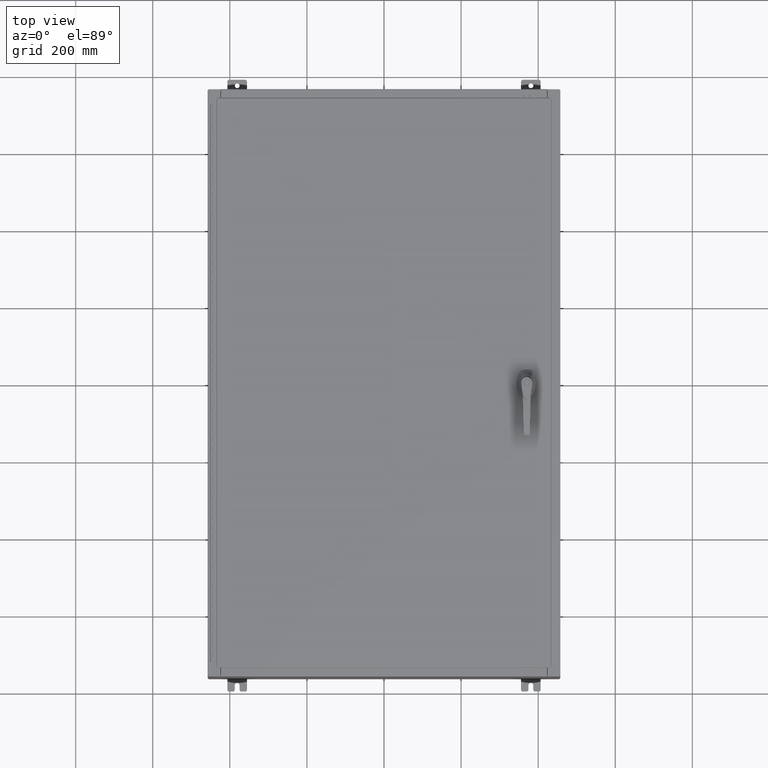
[diagram: clean part render]
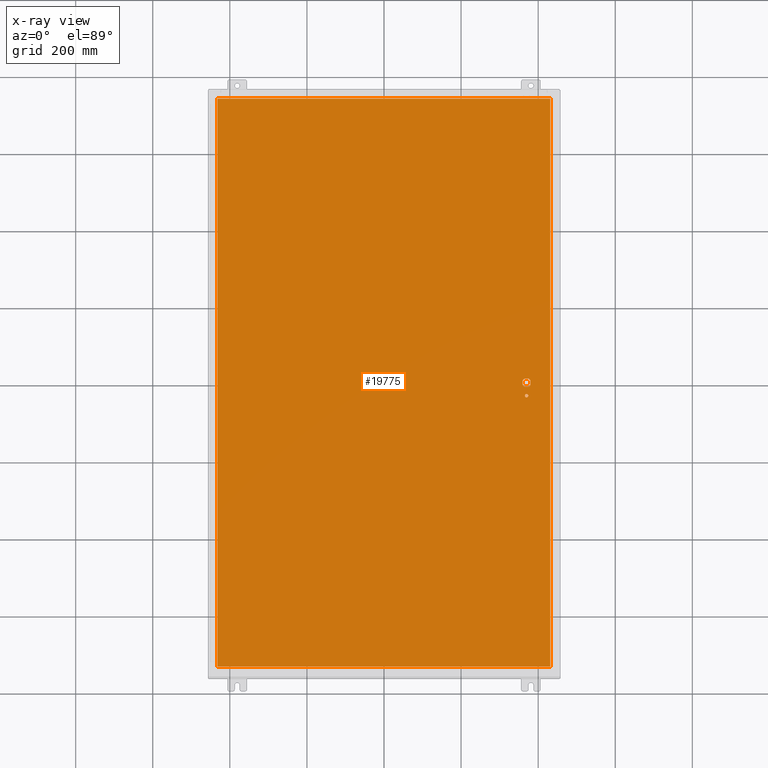
[diagram: x-ray — body ghosted, one internal face saturated and labeled with its STEP entity id]
A machine part, top view, then the same camera in x-ray: the body is ghosted and one INTERNAL B-rep face — a face not visible from any outside direction — is saturated and labeled: STEP entity #19775.
In plain terms, the highlighted planar face has unit normal (0, 0, -1).
Its self-contained STEP definition (entity closure, byte-faithful):
#2202 = PLANE ( 'NONE',  #128943 ) ;
#3647 = CARTESIAN_POINT ( 'NONE',  ( -16.99029999999999800, -29.00630000000000300, -0.07469999999999804600 ) ) ;
#4370 = ORIENTED_EDGE ( 'NONE', *, *, #90987, .T. ) ;
#6608 = CARTESIAN_POINT ( 'NONE',  ( 14.17500000000007700, -0.2002273707563079800, -0.07470000000000003000 ) ) ;
#6687 = DIRECTION ( 'NONE',  ( -1.000000000000000000, -1.776356839400246700E-015, 0.0000000000000000000 ) ) ;
#6693 = VERTEX_POINT ( 'NONE', #45824 ) ;
#7914 = LINE ( 'NONE', #70102, #118554 ) ;
#9940 = CARTESIAN_POINT ( 'NONE',  ( -16.99029999999999400, 29.00630000000000000, -0.07470000000000000300 ) ) ;
#11151 = DIRECTION ( 'NONE',  ( -0.0000000000000000000, -0.0000000000000000000, 1.000000000000000000 ) ) ;
#11737 = AXIS2_PLACEMENT_3D ( 'NONE', #102344, #36129, #113454 ) ;
#13310 = DIRECTION ( 'NONE',  ( 0.0000000000000000000, 0.0000000000000000000, -1.000000000000000000 ) ) ;
#13383 = FACE_BOUND ( 'NONE', #76223, .T. ) ;
#13465 = CARTESIAN_POINT ( 'NONE',  ( 14.77822737075631400, -0.4029999999999252000, -0.07470000000000003000 ) ) ;
#13559 = DIRECTION ( 'NONE',  ( 0.0000000000000000000, -1.000000000000000000, 0.0000000000000000000 ) ) ;
#14057 = CARTESIAN_POINT ( 'NONE',  ( -16.99029999999999800, -29.00630000000000000, -0.07470000000000000300 ) ) ;
#15241 = VERTEX_POINT ( 'NONE', #24203 ) ;
#15578 = CARTESIAN_POINT ( 'NONE',  ( 14.98099999999993100, 8.175868191945444300E-014, -0.07470000000000003000 ) ) ;
#18842 = ORIENTED_EDGE ( 'NONE', *, *, #28434, .T. ) ;
#19775 = ADVANCED_FACE ( 'NONE', ( #13383, #72144, #127573 ), #2202, .T. ) ;
#20954 = DIRECTION ( 'NONE',  ( -1.000000000000000000, 0.0000000000000000000, 0.0000000000000000000 ) ) ;
#21914 = VERTEX_POINT ( 'NONE', #128345 ) ;
#24014 = ORIENTED_EDGE ( 'NONE', *, *, #92097, .T. ) ;
#24203 = CARTESIAN_POINT ( 'NONE',  ( 14.37777262924369400, -0.4029999999999250300, -0.07470000000000003000 ) ) ;
#24465 = EDGE_CURVE ( 'NONE', #21914, #51813, #102449, .T. ) ;
#24717 = AXIS2_PLACEMENT_3D ( 'NONE', #50392, #127844, #61510 ) ;
#26716 = DIRECTION ( 'NONE',  ( 5.457491617345625800E-015, -1.000000000000000000, 0.0000000000000000000 ) ) ;
#28434 = EDGE_CURVE ( 'NONE', #15241, #125183, #32639, .T. ) ;
#29559 = CIRCLE ( 'NONE', #95383, 0.4499999999999168000 ) ;
#32421 = CARTESIAN_POINT ( 'NONE',  ( 14.40650000000000300, -1.338000000000000100, -0.07470000000000003000 ) ) ;
#32639 = LINE ( 'NONE', #106054, #61985 ) ;
#35504 = EDGE_CURVE ( 'NONE', #6693, #118662, #100791, .T. ) ;
#36129 = DIRECTION ( 'NONE',  ( -0.0000000000000000000, -0.0000000000000000000, 1.000000000000000000 ) ) ;
#37553 = DIRECTION ( 'NONE',  ( -1.000000000000000000, -0.0000000000000000000, -0.0000000000000000000 ) ) ;
#37565 = CIRCLE ( 'NONE', #39237, 0.1715000000000011500 ) ;
#37744 = DIRECTION ( 'NONE',  ( -0.0000000000000000000, -0.0000000000000000000, 1.000000000000000000 ) ) ;
#39237 = AXIS2_PLACEMENT_3D ( 'NONE', #53137, #130597, #64236 ) ;
#39891 = EDGE_CURVE ( 'NONE', #40535, #97982, #49019, .T. ) ;
#40535 = VERTEX_POINT ( 'NONE', #49387 ) ;
#41999 = VERTEX_POINT ( 'NONE', #9940 ) ;
#42608 = ORIENTED_EDGE ( 'NONE', *, *, #143449, .F. ) ;
#45753 = CIRCLE ( 'NONE', #11737, 0.4499999999999168000 ) ;
#45824 = CARTESIAN_POINT ( 'NONE',  ( 14.74950000000000500, -1.338000000000000100, -0.07470000000000003000 ) ) ;
#46461 = CARTESIAN_POINT ( 'NONE',  ( -16.99029999999999400, 29.00630000000000000, -0.07469999999999582500 ) ) ;
#48777 = ORIENTED_EDGE ( 'NONE', *, *, #39891, .T. ) ;
#49019 = LINE ( 'NONE', #131694, #100929 ) ;
#49387 = CARTESIAN_POINT ( 'NONE',  ( 14.77822737075631400, 0.4029999999999250300, -0.07470000000000003000 ) ) ;
#49713 = LINE ( 'NONE', #114866, #134564 ) ;
#50136 = ORIENTED_EDGE ( 'NONE', *, *, #35504, .T. ) ;
#50328 = VERTEX_POINT ( 'NONE', #109701 ) ;
#50392 = CARTESIAN_POINT ( 'NONE',  ( 14.57800000000000500, 0.0000000000000000000, -0.07470000000000003000 ) ) ;
#51813 = VERTEX_POINT ( 'NONE', #6608 ) ;
#53137 = CARTESIAN_POINT ( 'NONE',  ( 14.57800000000000500, -1.338000000000000100, -0.07470000000000003000 ) ) ;
#57191 = CARTESIAN_POINT ( 'NONE',  ( 0.0000000000000000000, 0.0000000000000000000, -0.07470000000000000300 ) ) ;
#60305 = EDGE_CURVE ( 'NONE', #41999, #126728, #71059, .T. ) ;
#61510 = DIRECTION ( 'NONE',  ( -1.000000000000000000, -5.329070518200740300E-015, 0.0000000000000000000 ) ) ;
#61985 = VECTOR ( 'NONE', #128295, 39.37007874015748100 ) ;
#64236 = DIRECTION ( 'NONE',  ( -1.000000000000000000, 0.0000000000000000000, 0.0000000000000000000 ) ) ;
#65210 = ORIENTED_EDGE ( 'NONE', *, *, #120143, .T. ) ;
#66015 = VECTOR ( 'NONE', #13559, 39.37007874015748100 ) ;
#68015 = ORIENTED_EDGE ( 'NONE', *, *, #60305, .F. ) ;
#70102 = CARTESIAN_POINT ( 'NONE',  ( 16.99030000000000500, -29.00630000000000000, -0.07470000000000019700 ) ) ;
#70374 = ORIENTED_EDGE ( 'NONE', *, *, #123834, .F. ) ;
#71059 = LINE ( 'NONE', #46461, #100502 ) ;
#72144 = FACE_OUTER_BOUND ( 'NONE', #132875, .T. ) ;
#72836 = DIRECTION ( 'NONE',  ( -0.0000000000000000000, -0.0000000000000000000, 1.000000000000000000 ) ) ;
#73479 = VERTEX_POINT ( 'NONE', #132088 ) ;
#75409 = ORIENTED_EDGE ( 'NONE', *, *, #107031, .T. ) ;
#76223 = EDGE_LOOP ( 'NONE', ( #50136, #4370 ) ) ;
#77349 = CARTESIAN_POINT ( 'NONE',  ( 14.57800000000000500, -1.338000000000000100, -0.07470000000000003000 ) ) ;
#84004 = EDGE_CURVE ( 'NONE', #98459, #73479, #123056, .T. ) ;
#85485 = VECTOR ( 'NONE', #114298, 39.37007874015748100 ) ;
#86839 = ORIENTED_EDGE ( 'NONE', *, *, #24465, .T. ) ;
#88491 = DIRECTION ( 'NONE',  ( -1.000000000000000000, 0.0000000000000000000, 0.0000000000000000000 ) ) ;
#90648 = DIRECTION ( 'NONE',  ( -1.000000000000000000, 0.0000000000000000000, -0.0000000000000000000 ) ) ;
#90987 = EDGE_CURVE ( 'NONE', #118662, #6693, #37565, .T. ) ;
#92097 = EDGE_CURVE ( 'NONE', #98459, #40535, #123877, .T. ) ;
#92291 = EDGE_LOOP ( 'NONE', ( #75409, #101824, #24014, #48777, #65210, #86839, #117678, #18842 ) ) ;
#92384 = DIRECTION ( 'NONE',  ( 0.0000000000000000000, 1.000000000000000000, 0.0000000000000000000 ) ) ;
#93631 = VECTOR ( 'NONE', #26716, 39.37007874015748100 ) ;
#93690 = CARTESIAN_POINT ( 'NONE',  ( 14.37777262924369400, 0.4029999999999252000, -0.07470000000000003000 ) ) ;
#95383 = AXIS2_PLACEMENT_3D ( 'NONE', #139179, #72836, #6687 ) ;
#97982 = VERTEX_POINT ( 'NONE', #93690 ) ;
#98459 = VERTEX_POINT ( 'NONE', #123069 ) ;
#98468 = ORIENTED_EDGE ( 'NONE', *, *, #133334, .F. ) ;
#100502 = VECTOR ( 'NONE', #123861, 39.37007874015748100 ) ;
#100791 = CIRCLE ( 'NONE', #102210, 0.1715000000000011500 ) ;
#100929 = VECTOR ( 'NONE', #20954, 39.37007874015748100 ) ;
#101824 = ORIENTED_EDGE ( 'NONE', *, *, #84004, .F. ) ;
#102210 = AXIS2_PLACEMENT_3D ( 'NONE', #77349, #11151, #88491 ) ;
#102344 = CARTESIAN_POINT ( 'NONE',  ( 14.57800000000000500, 0.0000000000000000000, -0.07470000000000003000 ) ) ;
#102449 = LINE ( 'NONE', #102498, #66015 ) ;
#102498 = CARTESIAN_POINT ( 'NONE',  ( 14.17500000000007700, 0.0000000000000000000, -0.07470000000000003000 ) ) ;
#103620 = VERTEX_POINT ( 'NONE', #135058 ) ;
#103965 = CARTESIAN_POINT ( 'NONE',  ( 14.57800000000000500, 0.0000000000000000000, -0.07470000000000003000 ) ) ;
#106054 = CARTESIAN_POINT ( 'NONE',  ( 0.0000000000000000000, -0.4029999999999252000, -0.07470000000000003000 ) ) ;
#107031 = EDGE_CURVE ( 'NONE', #125183, #73479, #45753, .T. ) ;
#109701 = CARTESIAN_POINT ( 'NONE',  ( 16.99030000000000500, 29.00630000000000000, -0.07470000000000000300 ) ) ;
#111222 = EDGE_CURVE ( 'NONE', #51813, #15241, #29559, .T. ) ;
#113454 = DIRECTION ( 'NONE',  ( -1.000000000000000000, -1.776356839400246700E-015, 0.0000000000000000000 ) ) ;
#114298 = DIRECTION ( 'NONE',  ( 1.000000000000000000, -0.0000000000000000000, -0.0000000000000000000 ) ) ;
#114866 = CARTESIAN_POINT ( 'NONE',  ( 16.99030000000000500, 29.00630000000000300, -0.07469999999999804600 ) ) ;
#114867 = LINE ( 'NONE', #3647, #85485 ) ;
#115036 = DIRECTION ( 'NONE',  ( -1.000000000000000000, -5.329070518200740300E-015, 0.0000000000000000000 ) ) ;
#117678 = ORIENTED_EDGE ( 'NONE', *, *, #111222, .T. ) ;
#118554 = VECTOR ( 'NONE', #92384, 39.37007874015748100 ) ;
#118662 = VERTEX_POINT ( 'NONE', #32421 ) ;
#120143 = EDGE_CURVE ( 'NONE', #97982, #21914, #125075, .T. ) ;
#123056 = LINE ( 'NONE', #15578, #93631 ) ;
#123069 = CARTESIAN_POINT ( 'NONE',  ( 14.98099999999993100, 0.2002273707563075900, -0.07470000000000003000 ) ) ;
#123834 = EDGE_CURVE ( 'NONE', #126728, #103620, #114867, .T. ) ;
#123861 = DIRECTION ( 'NONE',  ( 0.0000000000000000000, -1.000000000000000000, 0.0000000000000000000 ) ) ;
#123877 = CIRCLE ( 'NONE', #24717, 0.4499999999999168000 ) ;
#125075 = CIRCLE ( 'NONE', #127645, 0.4499999999999168000 ) ;
#125183 = VERTEX_POINT ( 'NONE', #13465 ) ;
#126728 = VERTEX_POINT ( 'NONE', #14057 ) ;
#127573 = FACE_BOUND ( 'NONE', #92291, .T. ) ;
#127645 = AXIS2_PLACEMENT_3D ( 'NONE', #103965, #37744, #115036 ) ;
#127844 = DIRECTION ( 'NONE',  ( -0.0000000000000000000, -0.0000000000000000000, 1.000000000000000000 ) ) ;
#128295 = DIRECTION ( 'NONE',  ( 1.000000000000000000, 0.0000000000000000000, 0.0000000000000000000 ) ) ;
#128345 = CARTESIAN_POINT ( 'NONE',  ( 14.17500000000007700, 0.2002273707563075900, -0.07470000000000003000 ) ) ;
#128943 = AXIS2_PLACEMENT_3D ( 'NONE', #57191, #13310, #90648 ) ;
#130597 = DIRECTION ( 'NONE',  ( -0.0000000000000000000, -0.0000000000000000000, 1.000000000000000000 ) ) ;
#131694 = CARTESIAN_POINT ( 'NONE',  ( 0.0000000000000000000, 0.4029999999999252000, -0.07470000000000003000 ) ) ;
#132088 = CARTESIAN_POINT ( 'NONE',  ( 14.98099999999993100, -0.2002273707563067300, -0.07470000000000003000 ) ) ;
#132875 = EDGE_LOOP ( 'NONE', ( #98468, #70374, #68015, #42608 ) ) ;
#133334 = EDGE_CURVE ( 'NONE', #103620, #50328, #7914, .T. ) ;
#134564 = VECTOR ( 'NONE', #37553, 39.37007874015748100 ) ;
#135058 = CARTESIAN_POINT ( 'NONE',  ( 16.99030000000000500, -29.00630000000000000, -0.07470000000000000300 ) ) ;
#139179 = CARTESIAN_POINT ( 'NONE',  ( 14.57800000000000500, 0.0000000000000000000, -0.07470000000000003000 ) ) ;
#143449 = EDGE_CURVE ( 'NONE', #50328, #41999, #49713, .T. ) ;